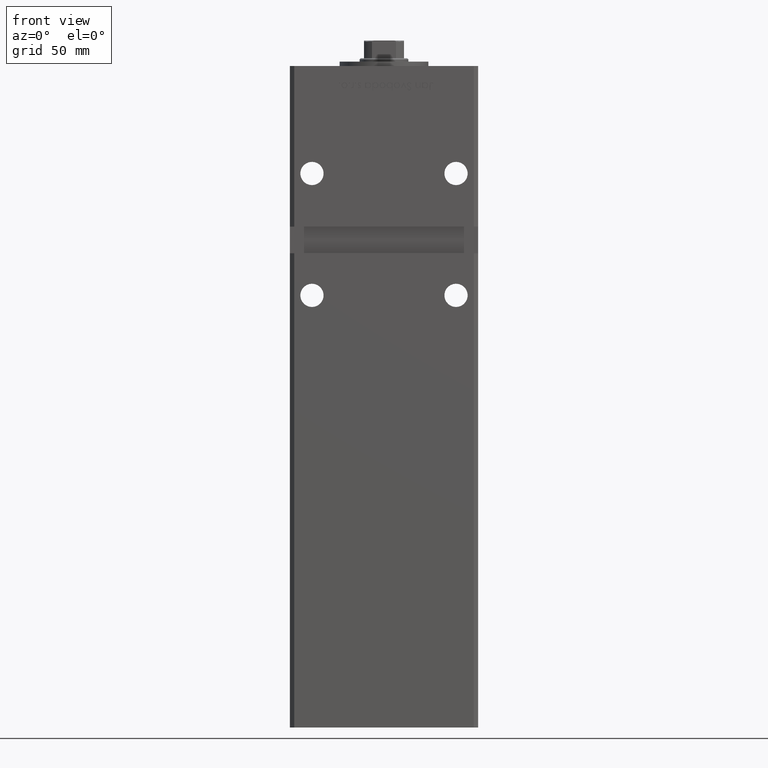
[diagram: clean part render]
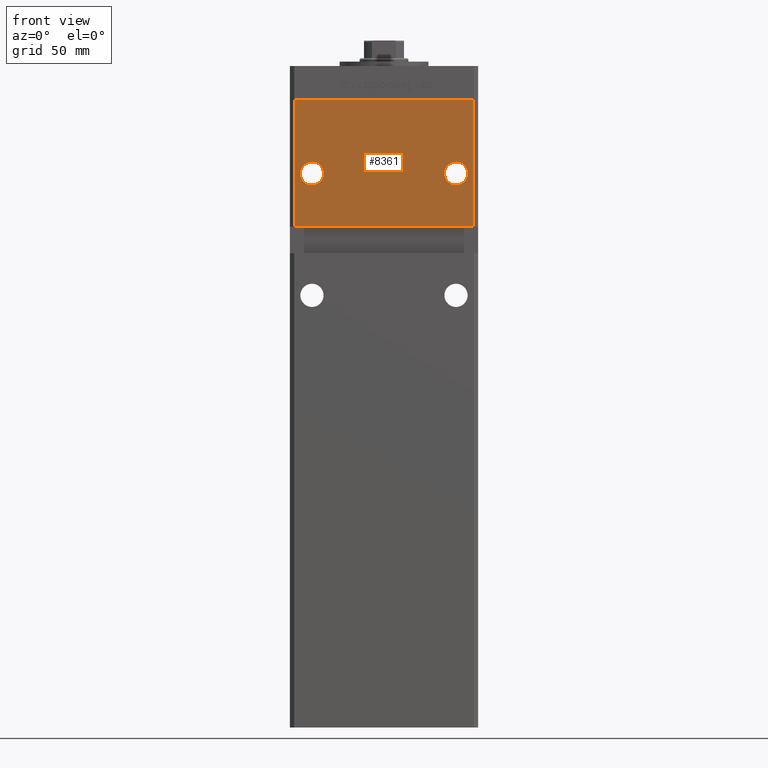
[diagram: same view with one face highlighted and labeled with its STEP entity id]
A machine part, front view. The second image highlights one B-rep face of the part: STEP entity #8361.
In plain terms, the highlighted planar face has unit normal (0, 1, 0).
Its self-contained STEP definition (entity closure, byte-faithful):
#1554 = CARTESIAN_POINT ( 'NONE',  ( 40.49999999999998579, -37.50000000000000711, 268.5000000000000000 ) ) ;
#1889 = FACE_BOUND ( 'NONE', #31892, .T. ) ;
#2211 = EDGE_CURVE ( 'NONE', #34662, #12035, #11276, .T. ) ;
#2420 = DIRECTION ( 'NONE',  ( 0.000000000000000000, 1.000000000000000000, 0.000000000000000000 ) ) ;
#2421 = FACE_OUTER_BOUND ( 'NONE', #33222, .T. ) ;
#2491 = VERTEX_POINT ( 'NONE', #52845 ) ;
#2692 = DIRECTION ( 'NONE',  ( 0.000000000000000000, 0.000000000000000000, 1.000000000000000000 ) ) ;
#4315 = DIRECTION ( 'NONE',  ( 1.000000000000000000, 0.000000000000000000, 0.000000000000000000 ) ) ;
#5108 = LINE ( 'NONE', #25810, #28962 ) ;
#5333 = AXIS2_PLACEMENT_3D ( 'NONE', #30647, #2420, #2692 ) ;
#5895 = FACE_BOUND ( 'NONE', #46047, .T. ) ;
#6350 = CARTESIAN_POINT ( 'NONE',  ( 40.49999999999997868, -37.50000000000000711, 211.0000000000000284 ) ) ;
#6713 = CARTESIAN_POINT ( 'NONE',  ( 40.49999999999998579, -37.50000000000000711, 268.5000000000000000 ) ) ;
#7522 = ORIENTED_EDGE ( 'NONE', *, *, #18819, .F. ) ;
#8361 = ADVANCED_FACE ( 'NONE', ( #5895, #1889, #2421 ), #22316, .F. ) ;
#9441 = VERTEX_POINT ( 'NONE', #37336 ) ;
#10983 = AXIS2_PLACEMENT_3D ( 'NONE', #22848, #14215, #18812 ) ;
#11276 = LINE ( 'NONE', #6713, #24667 ) ;
#11409 = DIRECTION ( 'NONE',  ( 0.000000000000000000, 1.000000000000000000, 0.000000000000000000 ) ) ;
#12035 = VERTEX_POINT ( 'NONE', #6350 ) ;
#12058 = LINE ( 'NONE', #12311, #51803 ) ;
#12311 = CARTESIAN_POINT ( 'NONE',  ( -42.49999999999998579, -37.50000000000000711, 211.0000000000000284 ) ) ;
#13248 = CARTESIAN_POINT ( 'NONE',  ( -32.50000000000000000, -37.50000000000000711, 240.2500000000000284 ) ) ;
#13447 = EDGE_CURVE ( 'NONE', #9441, #17192, #52813, .T. ) ;
#14215 = DIRECTION ( 'NONE',  ( 0.000000000000000000, 1.000000000000000000, 0.000000000000000000 ) ) ;
#14353 = CARTESIAN_POINT ( 'NONE',  ( 32.50000000000000000, -37.50000000000000711, 229.7500000000000000 ) ) ;
#15366 = AXIS2_PLACEMENT_3D ( 'NONE', #36694, #11409, #27831 ) ;
#15844 = CARTESIAN_POINT ( 'NONE',  ( 32.50000000000000000, -37.50000000000000711, 235.0000000000000284 ) ) ;
#17192 = VERTEX_POINT ( 'NONE', #25794 ) ;
#18812 = DIRECTION ( 'NONE',  ( 0.000000000000000000, -0.000000000000000000, 1.000000000000000000 ) ) ;
#18819 = EDGE_CURVE ( 'NONE', #12035, #17192, #12058, .T. ) ;
#18846 = ORIENTED_EDGE ( 'NONE', *, *, #21508, .T. ) ;
#19229 = CARTESIAN_POINT ( 'NONE',  ( 32.50000000000000000, -37.50000000000000711, 240.2500000000000284 ) ) ;
#20594 = EDGE_CURVE ( 'NONE', #24747, #29702, #20812, .T. ) ;
#20812 = CIRCLE ( 'NONE', #5333, 5.250000000000004441 ) ;
#21508 = EDGE_CURVE ( 'NONE', #29702, #24747, #50069, .T. ) ;
#22316 = PLANE ( 'NONE',  #10983 ) ;
#22848 = CARTESIAN_POINT ( 'NONE',  ( -40.49999999999998579, -37.50000000000000711, 268.5000000000000000 ) ) ;
#24071 = VECTOR ( 'NONE', #44469, 1000.000000000000000 ) ;
#24557 = CARTESIAN_POINT ( 'NONE',  ( -32.50000000000000000, -37.50000000000000711, 235.0000000000000284 ) ) ;
#24667 = VECTOR ( 'NONE', #47339, 1000.000000000000000 ) ;
#24671 = CIRCLE ( 'NONE', #30706, 5.250000000000004441 ) ;
#24747 = VERTEX_POINT ( 'NONE', #14353 ) ;
#25794 = CARTESIAN_POINT ( 'NONE',  ( -40.49999999999998579, -37.50000000000000711, 211.0000000000000284 ) ) ;
#25810 = CARTESIAN_POINT ( 'NONE',  ( -40.49999999999998579, -37.50000000000000711, 268.5000000000000000 ) ) ;
#27831 = DIRECTION ( 'NONE',  ( 0.000000000000000000, 0.000000000000000000, 1.000000000000000000 ) ) ;
#28067 = DIRECTION ( 'NONE',  ( 0.000000000000000000, 0.000000000000000000, 1.000000000000000000 ) ) ;
#28558 = VERTEX_POINT ( 'NONE', #13248 ) ;
#28962 = VECTOR ( 'NONE', #4315, 1000.000000000000000 ) ;
#29702 = VERTEX_POINT ( 'NONE', #19229 ) ;
#30402 = ORIENTED_EDGE ( 'NONE', *, *, #20594, .T. ) ;
#30647 = CARTESIAN_POINT ( 'NONE',  ( 32.50000000000000000, -37.50000000000000711, 235.0000000000000284 ) ) ;
#30706 = AXIS2_PLACEMENT_3D ( 'NONE', #24557, #40692, #28067 ) ;
#31406 = ORIENTED_EDGE ( 'NONE', *, *, #13447, .T. ) ;
#31892 = EDGE_LOOP ( 'NONE', ( #50600, #38544 ) ) ;
#31997 = DIRECTION ( 'NONE',  ( -1.000000000000000000, -0.000000000000000000, -0.000000000000000000 ) ) ;
#33222 = EDGE_LOOP ( 'NONE', ( #31406, #7522, #37977, #43080 ) ) ;
#34662 = VERTEX_POINT ( 'NONE', #1554 ) ;
#36694 = CARTESIAN_POINT ( 'NONE',  ( -32.50000000000000000, -37.50000000000000711, 235.0000000000000284 ) ) ;
#36937 = CARTESIAN_POINT ( 'NONE',  ( -40.49999999999998579, -37.50000000000000711, 268.5000000000000000 ) ) ;
#37157 = AXIS2_PLACEMENT_3D ( 'NONE', #15844, #40335, #47878 ) ;
#37336 = CARTESIAN_POINT ( 'NONE',  ( -40.49999999999998579, -37.50000000000000711, 268.5000000000000000 ) ) ;
#37977 = ORIENTED_EDGE ( 'NONE', *, *, #2211, .F. ) ;
#38544 = ORIENTED_EDGE ( 'NONE', *, *, #48521, .T. ) ;
#38756 = EDGE_CURVE ( 'NONE', #28558, #2491, #24671, .T. ) ;
#39248 = EDGE_CURVE ( 'NONE', #9441, #34662, #5108, .T. ) ;
#40335 = DIRECTION ( 'NONE',  ( 0.000000000000000000, 1.000000000000000000, 0.000000000000000000 ) ) ;
#40692 = DIRECTION ( 'NONE',  ( 0.000000000000000000, 1.000000000000000000, 0.000000000000000000 ) ) ;
#43080 = ORIENTED_EDGE ( 'NONE', *, *, #39248, .F. ) ;
#44469 = DIRECTION ( 'NONE',  ( -0.000000000000000000, -0.000000000000000000, -1.000000000000000000 ) ) ;
#46047 = EDGE_LOOP ( 'NONE', ( #18846, #30402 ) ) ;
#47339 = DIRECTION ( 'NONE',  ( -0.000000000000000000, -0.000000000000000000, -1.000000000000000000 ) ) ;
#47878 = DIRECTION ( 'NONE',  ( 0.000000000000000000, 0.000000000000000000, 1.000000000000000000 ) ) ;
#48521 = EDGE_CURVE ( 'NONE', #2491, #28558, #50637, .T. ) ;
#50069 = CIRCLE ( 'NONE', #37157, 5.250000000000004441 ) ;
#50600 = ORIENTED_EDGE ( 'NONE', *, *, #38756, .T. ) ;
#50637 = CIRCLE ( 'NONE', #15366, 5.250000000000004441 ) ;
#51803 = VECTOR ( 'NONE', #31997, 1000.000000000000000 ) ;
#52813 = LINE ( 'NONE', #36937, #24071 ) ;
#52845 = CARTESIAN_POINT ( 'NONE',  ( -32.50000000000000000, -37.50000000000000711, 229.7500000000000000 ) ) ;